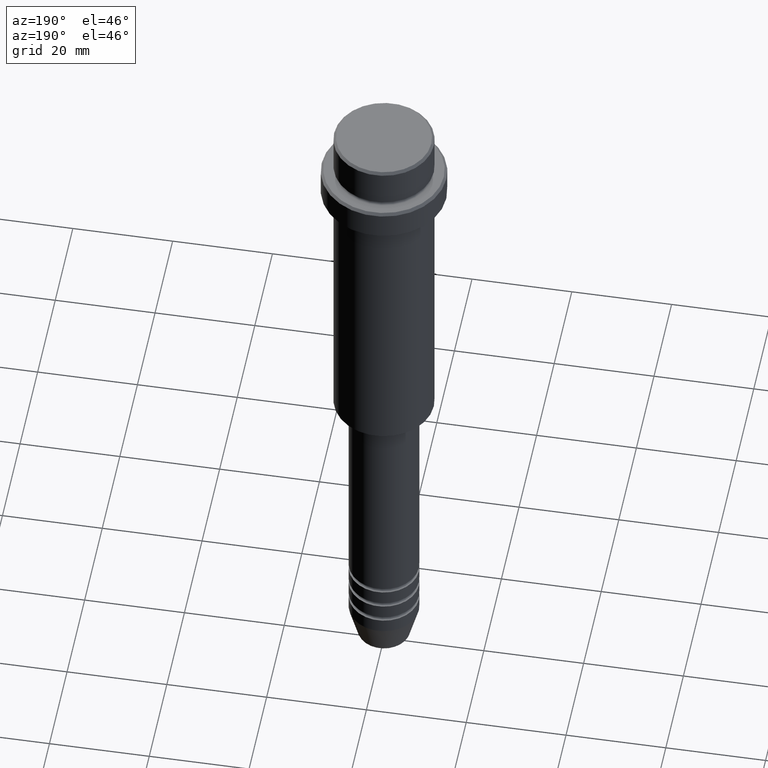
[diagram: clean part render]
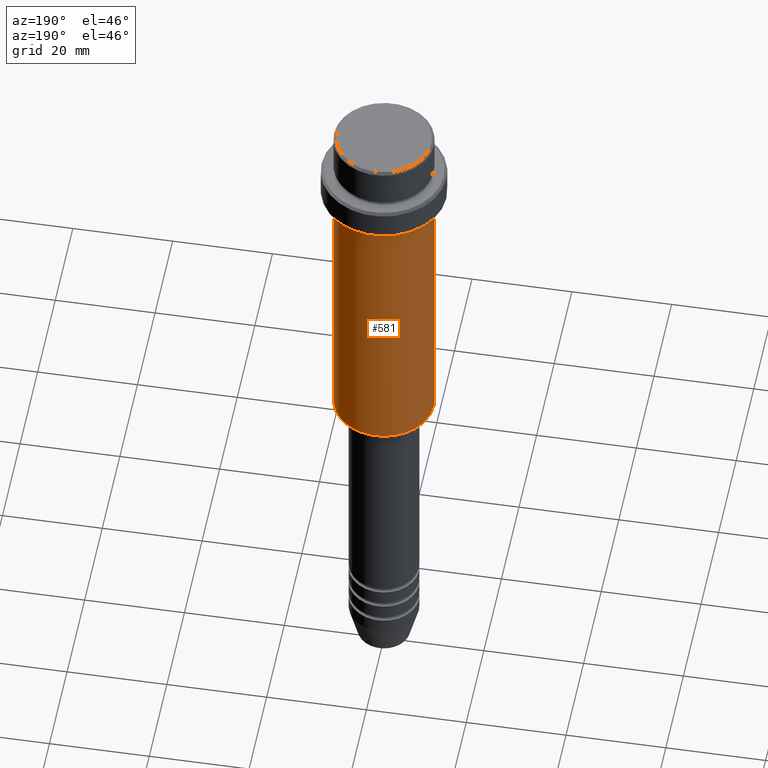
[diagram: same view with one face highlighted and labeled with its STEP entity id]
A machine part, auxiliary view. The second image highlights one B-rep face of the part: STEP entity #581.
In plain terms, the highlighted cylindrical surface (partial cylindrical patch) has radius 10 mm, axis along (-0, -0, 1).
Its self-contained STEP definition (entity closure, byte-faithful):
#9 = DIRECTION ( 'NONE',  ( -0.000000000000000000, -0.000000000000000000, 1.000000000000000000 ) ) ;
#10 = EDGE_CURVE ( 'NONE', #1390, #397, #292, .T. ) ;
#22 = ORIENTED_EDGE ( 'NONE', *, *, #947, .F. ) ;
#161 = CARTESIAN_POINT ( 'NONE',  ( -9.999999999999998224, 1.224646799147353059E-15, 0.000000000000000000 ) ) ;
#248 = EDGE_CURVE ( 'NONE', #1390, #885, #403, .T. ) ;
#292 = LINE ( 'NONE', #1383, #630 ) ;
#324 = EDGE_LOOP ( 'NONE', ( #1334, #580, #22, #1392 ) ) ;
#348 = CARTESIAN_POINT ( 'NONE',  ( 0.000000000000000000, 0.000000000000000000, -74.49999999999998579 ) ) ;
#362 = DIRECTION ( 'NONE',  ( -1.000000000000000000, 0.000000000000000000, 0.000000000000000000 ) ) ;
#365 = DIRECTION ( 'NONE',  ( 1.000000000000000000, 0.000000000000000000, 0.000000000000000000 ) ) ;
#367 = DIRECTION ( 'NONE',  ( -0.000000000000000000, -0.000000000000000000, 1.000000000000000000 ) ) ;
#371 = LINE ( 'NONE', #161, #540 ) ;
#395 = CARTESIAN_POINT ( 'NONE',  ( 9.999999999999998224, 0.000000000000000000, -16.00000000000000000 ) ) ;
#397 = VERTEX_POINT ( 'NONE', #395 ) ;
#403 = CIRCLE ( 'NONE', #1319, 9.999999999999998224 ) ;
#417 = CARTESIAN_POINT ( 'NONE',  ( -9.999999999999998224, 1.224646799147353059E-15, -74.49999999999998579 ) ) ;
#423 = CIRCLE ( 'NONE', #958, 9.999999999999998224 ) ;
#435 = CYLINDRICAL_SURFACE ( 'NONE', #759, 9.999999999999998224 ) ;
#540 = VECTOR ( 'NONE', #1151, 1000.000000000000000 ) ;
#548 = DIRECTION ( 'NONE',  ( 1.000000000000000000, 0.000000000000000000, 0.000000000000000000 ) ) ;
#580 = ORIENTED_EDGE ( 'NONE', *, *, #1138, .T. ) ;
#581 = ADVANCED_FACE ( 'NONE', ( #995 ), #435, .T. ) ;
#630 = VECTOR ( 'NONE', #861, 1000.000000000000000 ) ;
#653 = VERTEX_POINT ( 'NONE', #803 ) ;
#681 = DIRECTION ( 'NONE',  ( -0.000000000000000000, -0.000000000000000000, 1.000000000000000000 ) ) ;
#759 = AXIS2_PLACEMENT_3D ( 'NONE', #1130, #681, #365 ) ;
#781 = CARTESIAN_POINT ( 'NONE',  ( 9.999999999999998224, 0.000000000000000000, -74.49999999999998579 ) ) ;
#803 = CARTESIAN_POINT ( 'NONE',  ( -9.999999999999998224, 1.224646799147353059E-15, -16.00000000000000000 ) ) ;
#861 = DIRECTION ( 'NONE',  ( -0.000000000000000000, -0.000000000000000000, 1.000000000000000000 ) ) ;
#885 = VERTEX_POINT ( 'NONE', #417 ) ;
#947 = EDGE_CURVE ( 'NONE', #397, #653, #423, .T. ) ;
#958 = AXIS2_PLACEMENT_3D ( 'NONE', #1329, #9, #548 ) ;
#995 = FACE_OUTER_BOUND ( 'NONE', #324, .T. ) ;
#1130 = CARTESIAN_POINT ( 'NONE',  ( 0.000000000000000000, 0.000000000000000000, 0.000000000000000000 ) ) ;
#1138 = EDGE_CURVE ( 'NONE', #885, #653, #371, .T. ) ;
#1151 = DIRECTION ( 'NONE',  ( -0.000000000000000000, -0.000000000000000000, 1.000000000000000000 ) ) ;
#1319 = AXIS2_PLACEMENT_3D ( 'NONE', #348, #367, #362 ) ;
#1329 = CARTESIAN_POINT ( 'NONE',  ( 0.000000000000000000, 0.000000000000000000, -16.00000000000000000 ) ) ;
#1334 = ORIENTED_EDGE ( 'NONE', *, *, #248, .T. ) ;
#1383 = CARTESIAN_POINT ( 'NONE',  ( 9.999999999999998224, 0.000000000000000000, 0.000000000000000000 ) ) ;
#1390 = VERTEX_POINT ( 'NONE', #781 ) ;
#1392 = ORIENTED_EDGE ( 'NONE', *, *, #10, .F. ) ;